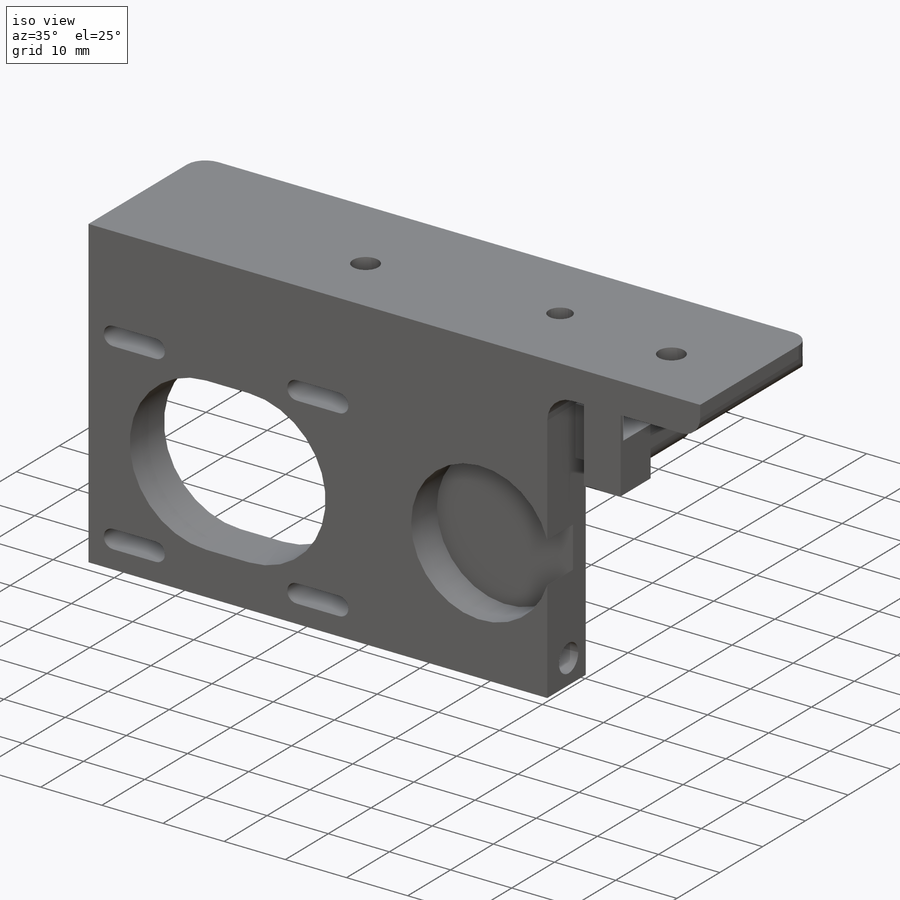
[diagram: iso view]
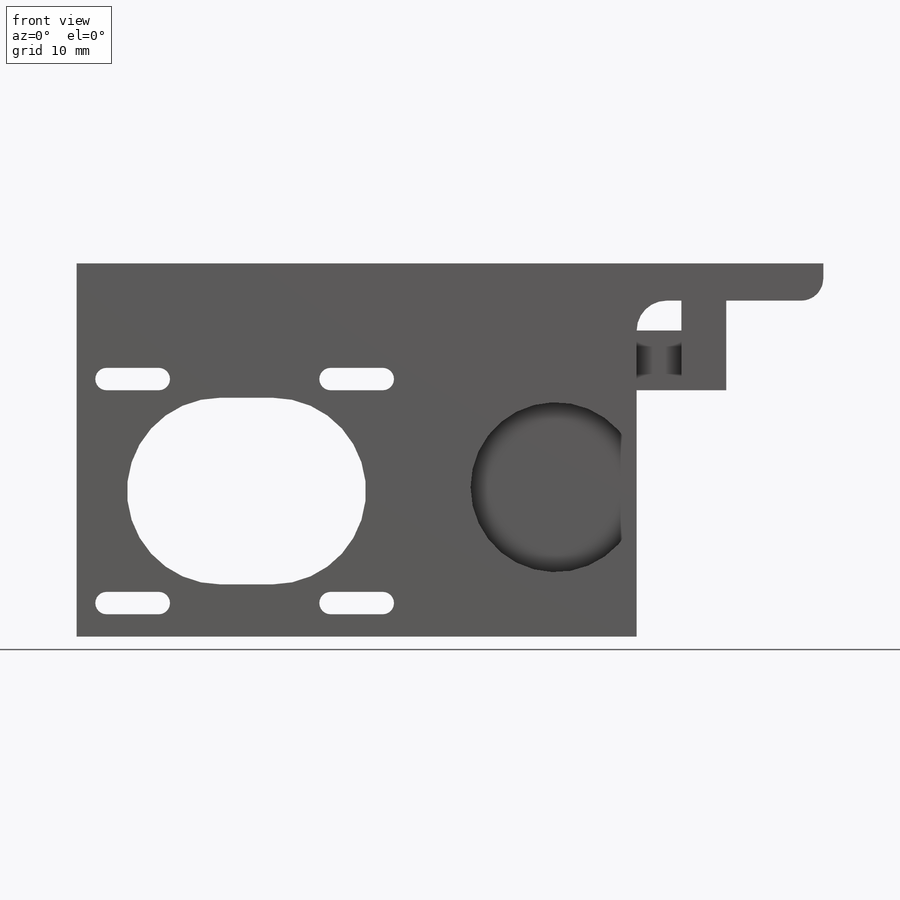
[diagram: front view]
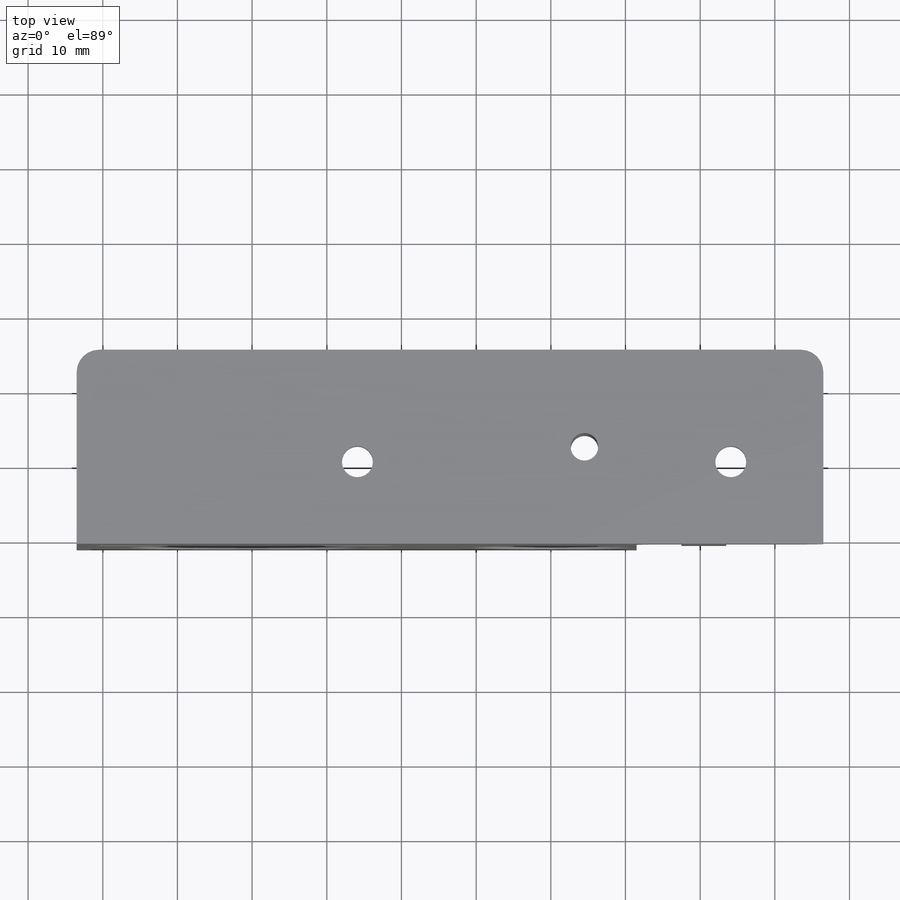
[diagram: top view]
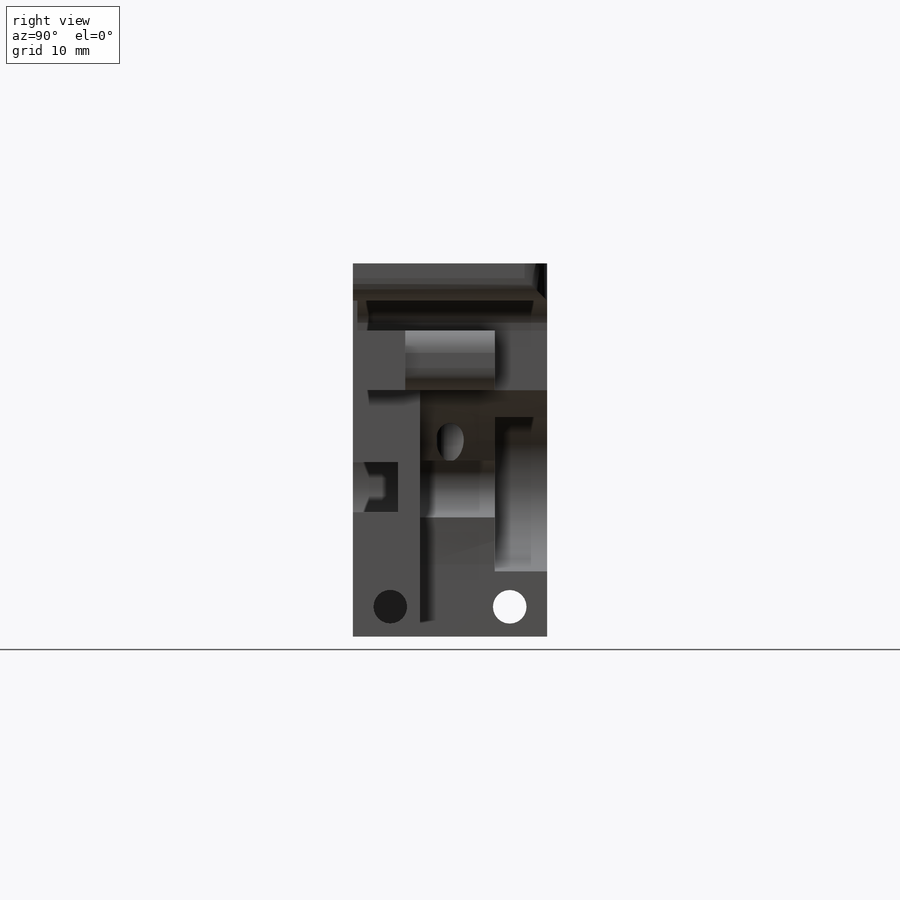
[diagram: right view]
SOLIDWORKS PART (.sldprt)
format: sldprt  version: not decoded by parser v0  size: 539,648 bytes
history: native  units: mm
features: sketch x17, cut_extrude x9, extrude x8, fillet x3, material x1 (+11 scaffold rows collapsed)
feature tree (49):
  scaffold x11  (default folders/planes/origin — collapsed)
  material  "Material <not specified>"
  sketch  "Sketch1"  dims[c1.D1=4.15mm c1.D2=4.15mm c1.D4=3.25mm c1.D3=50.0mm c1.D5=2.0mm c1.D6=14.5mm c2.D5=11.0mm c2.D6=13.0mm c2.D7=12.4mm c2.D8=32.0mm c2.D9=26.0mm c2.D10=11.0mm c2.D11=100.0mm c2.D12=33.5mm]
  extrude  "Boss-Extrude1"  Depth=5mm
  sketch  "Sketch2"  dims[D1=50.0mm D2=60.0mm]
  extrude  "Boss-Extrude2"  Depth=8mm
  sketch  "Sketch3"  dims[c1.D9=1.5mm c1.D13=12.5mm c1.D1=5.0mm c1.D2=5.0mm c1.D3=5.0mm c1.D4=7.0mm c1.D5=~17.960711mm c1.D6=15.5mm c2.D5=30.0mm c2.D7=30.0mm c2.D8=4.0mm c2.D9=~2.784606mm c2.D10=15.0mm c2.D11=14.75mm c2.D12=7.0mm c2.D2=6.0mm c2.D3=11.0mm]
  cut_extrude  "Cut-Extrude1"  [1 undecoded]
  sketch  "Sketch5"  dims[c1.D1=25.0mm c1.D2=23.0mm c1.D3=25.0mm c1.D4=25.0mm c2.D2=25.0mm c2.D3=25.0mm]
  extrude  "Boss-Extrude3"  Depth=45mm
  sketch  "Sketch7"  dims[D1=8.25mm D2=2.0mm D3=3.5mm D4=30.0mm]
  cut_extrude  "Cut-Extrude3"  [1 undecoded]
  sketch  "Sketch9"  dims[D1=3.7mm]
  cut_extrude  "Cut-Extrude4"  [1 undecoded]
  sketch  "Sketch10"  dims[c1.D2=28.0mm c1.D1=12.0mm c2.D2=~21.65108mm c3.D2=~1.154203deg c4.D2=~21.65108mm]
  cut_extrude  "Cut-Extrude5"  Depth=17mm
  sketch  "Sketch11"  dims[D1=22.75mm]
  cut_extrude  "Cut-Extrude6"  Depth=6mm
  sketch  "Sketch12"  dims[D1=22.75mm]
  cut_extrude  "Cut-Extrude7"  Depth=7mm
  sketch  "Sketch13"  dims[c1.D1=8.0mm c1.D2=8.0mm c2.D1=12.0mm c2.D3=12.0mm c3.D1=12.0mm c3.D2=8.0mm c3.D3=7.0mm c3.D4=4.0mm c3.D5=8.0mm]
  extrude  "Boss-Extrude4"  Depth=10.25mm
  sketch  "Sketch18"  dims[D1=4.4mm D2=3.75mm D3=4.0mm]
  cut_extrude  "Cut-Extrude8"  Depth=12mm
  fillet  "Fillet3"  Radius=3mm
  sketch  "Sketch19"  dims[D1=4.5mm D2=4.5mm D3=16.0mm D4=5.0mm D5=4.0mm D6=4.0mm]
  cut_extrude  "Cut-Extrude9"  Depth=28.5mm
  fillet  "Fillet5"  Radius=4mm
  sketch  "Sketch20"  dims[D1=12.0mm D2=8.0mm D3=13.0mm]
  extrude  "Boss-Extrude6"  Depth=0.4mm
  sketch  "Sketch21"  dims[D1=~19.015013mm]
  extrude  "Boss-Extrude7"  Depth=6mm
  sketch  "Sketch22"  dims[D1=8.0mm D2=8.0mm D3=3.0mm D4=3.0mm D5=5.0mm D6=5.0mm D7=1.0mm D8=1.0mm]
  cut_extrude  "Cut-Extrude10"  Depth=8mm
  sketch  "Sketch23"
  extrude  "Boss-Extrude8"  [1 undecoded]
  sketch  "Sketch24"  dims[D1=10.0mm]
  extrude  "Boss-Extrude9"  Depth=0.4mm
  fillet  "Fillet7"  Radius=3mm
decode coverage: 32 of 37 modeling features carry decoded parameters
note: ~ marks probable driven/reference dimensions
note: 4 parameter values undecoded
summary: no parameter record found for 4 features
note: suppression state not decoded; provenance and decode notes live in map.json
